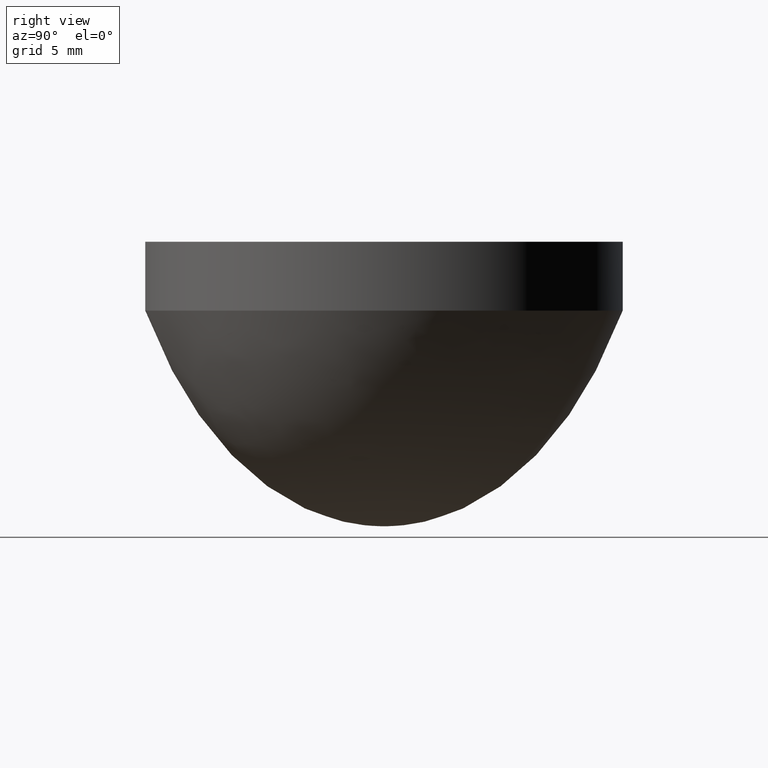
[diagram: clean part render]
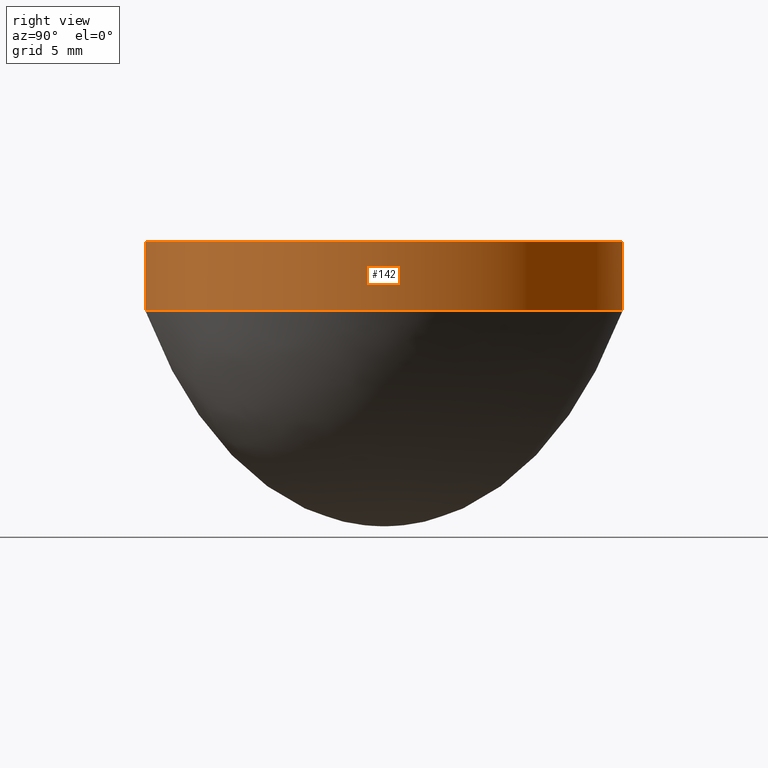
[diagram: same view with one face highlighted and labeled with its STEP entity id]
A machine part, right view. The second image highlights one B-rep face of the part: STEP entity #142.
In plain terms, the highlighted cylindrical surface (partial cylindrical patch) has radius 12.5 mm, axis along (0, 0, -1).
Its self-contained STEP definition (entity closure, byte-faithful):
#17 = VECTOR ( 'NONE', #605, 1000.000000000000000 ) ;
#24 = ORIENTED_EDGE ( 'NONE', *, *, #885, .T. ) ;
#55 = AXIS2_PLACEMENT_3D ( 'NONE', #918, #166, #513 ) ;
#72 = AXIS2_PLACEMENT_3D ( 'NONE', #624, #646, #319 ) ;
#79 = VERTEX_POINT ( 'NONE', #557 ) ;
#96 = DIRECTION ( 'NONE',  ( 0.000000000000000000, 0.000000000000000000, 1.000000000000000000 ) ) ;
#142 = ADVANCED_FACE ( 'NONE', ( #1074 ), #822, .T. ) ;
#166 = DIRECTION ( 'NONE',  ( 0.000000000000000000, 0.000000000000000000, -1.000000000000000000 ) ) ;
#187 = VERTEX_POINT ( 'NONE', #407 ) ;
#199 = CIRCLE ( 'NONE', #419, 12.50000000000000000 ) ;
#229 = VERTEX_POINT ( 'NONE', #934 ) ;
#280 = CARTESIAN_POINT ( 'NONE',  ( 0.000000000000000000, 0.000000000000000000, 11.29451095824919982 ) ) ;
#298 = ORIENTED_EDGE ( 'NONE', *, *, #1082, .T. ) ;
#319 = DIRECTION ( 'NONE',  ( 0.000000000000000000, 1.000000000000000000, 0.000000000000000000 ) ) ;
#335 = EDGE_CURVE ( 'NONE', #906, #229, #767, .T. ) ;
#391 = ORIENTED_EDGE ( 'NONE', *, *, #335, .T. ) ;
#407 = CARTESIAN_POINT ( 'NONE',  ( 1.530808498934191521E-15, -12.50000000000000000, 11.29451095824919982 ) ) ;
#419 = AXIS2_PLACEMENT_3D ( 'NONE', #280, #96, #1044 ) ;
#493 = EDGE_CURVE ( 'NONE', #906, #79, #709, .T. ) ;
#513 = DIRECTION ( 'NONE',  ( 0.000000000000000000, 1.000000000000000000, 0.000000000000000000 ) ) ;
#525 = LINE ( 'NONE', #531, #17 ) ;
#531 = CARTESIAN_POINT ( 'NONE',  ( 1.530808498934191521E-15, -12.50000000000000000, 15.64499999999999957 ) ) ;
#557 = CARTESIAN_POINT ( 'NONE',  ( 0.000000000000000000, 12.50000000000000000, 11.29451095824919982 ) ) ;
#605 = DIRECTION ( 'NONE',  ( 0.000000000000000000, 0.000000000000000000, -1.000000000000000000 ) ) ;
#624 = CARTESIAN_POINT ( 'NONE',  ( 0.000000000000000000, 0.000000000000000000, 15.64499999999999957 ) ) ;
#646 = DIRECTION ( 'NONE',  ( 0.000000000000000000, 0.000000000000000000, -1.000000000000000000 ) ) ;
#652 = ORIENTED_EDGE ( 'NONE', *, *, #493, .F. ) ;
#709 = LINE ( 'NONE', #869, #969 ) ;
#732 = EDGE_LOOP ( 'NONE', ( #391, #24, #298, #652 ) ) ;
#767 = CIRCLE ( 'NONE', #55, 12.50000000000000000 ) ;
#782 = DIRECTION ( 'NONE',  ( 0.000000000000000000, 0.000000000000000000, -1.000000000000000000 ) ) ;
#822 = CYLINDRICAL_SURFACE ( 'NONE', #72, 12.50000000000000000 ) ;
#869 = CARTESIAN_POINT ( 'NONE',  ( 0.000000000000000000, 12.50000000000000000, 15.64499999999999957 ) ) ;
#885 = EDGE_CURVE ( 'NONE', #229, #187, #525, .T. ) ;
#906 = VERTEX_POINT ( 'NONE', #1027 ) ;
#918 = CARTESIAN_POINT ( 'NONE',  ( 0.000000000000000000, 0.000000000000000000, 14.90000000000000036 ) ) ;
#934 = CARTESIAN_POINT ( 'NONE',  ( 1.530808498934191521E-15, -12.50000000000000000, 14.90000000000000036 ) ) ;
#969 = VECTOR ( 'NONE', #782, 1000.000000000000000 ) ;
#1027 = CARTESIAN_POINT ( 'NONE',  ( 0.000000000000000000, 12.50000000000000000, 14.90000000000000036 ) ) ;
#1044 = DIRECTION ( 'NONE',  ( 0.000000000000000000, 1.000000000000000000, 0.000000000000000000 ) ) ;
#1074 = FACE_OUTER_BOUND ( 'NONE', #732, .T. ) ;
#1082 = EDGE_CURVE ( 'NONE', #187, #79, #199, .T. ) ;